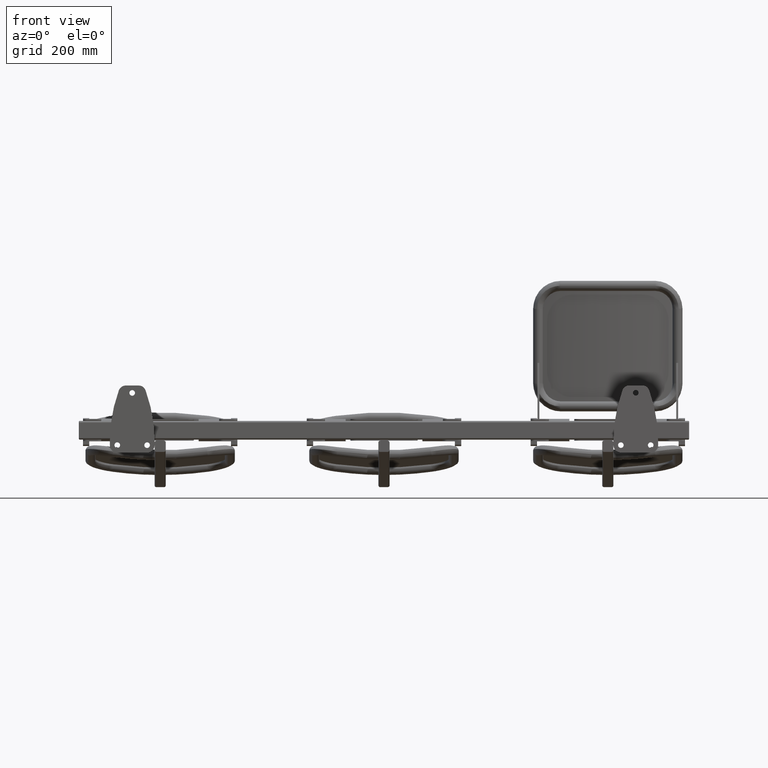
[diagram: clean part render]
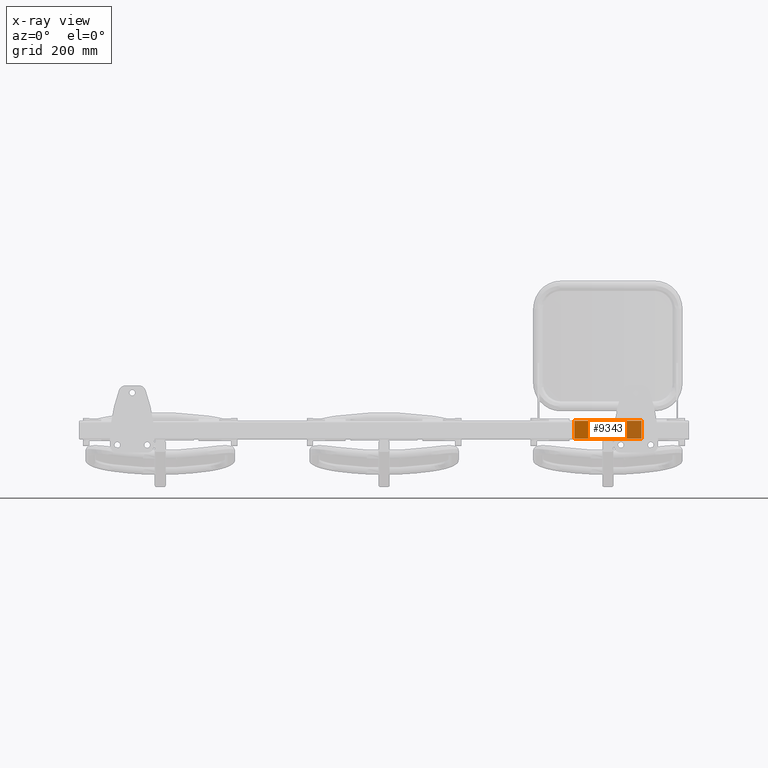
[diagram: x-ray — body ghosted, one internal face saturated and labeled with its STEP entity id]
A machine part, front view, then the same camera in x-ray: the body is ghosted and one INTERNAL B-rep face — a face not visible from any outside direction — is saturated and labeled: STEP entity #9343.
In plain terms, the highlighted planar face has unit normal (0, -1, -0).
Its self-contained STEP definition (entity closure, byte-faithful):
#3045 = AXIS2_PLACEMENT_3D ( 'NONE', #3160, #3165, #3166 ) ;
#3160 = CARTESIAN_POINT ( 'NONE',  ( 90.00000000000000000, -4.492917384351786200, 382.8460752030026700 ) ) ;
#3163 = PLANE ( 'NONE',  #3045 ) ;
#3165 = DIRECTION ( 'NONE',  ( 0.0000000000000000000, -0.1218693434051495300, 0.9925461516413217600 ) ) ;
#3166 = DIRECTION ( 'NONE',  ( 0.0000000000000000000, -0.9925461516413217600, -0.1218693434051495300 ) ) ;
#4816 = CARTESIAN_POINT ( 'NONE',  ( 90.00000000000000000, 43.14929789443161900, 388.6958036864497800 ) ) ;
#4841 = CARTESIAN_POINT ( 'NONE',  ( -90.00000000000000000, 43.14929789443161900, 388.6958036864497800 ) ) ;
#5156 = CARTESIAN_POINT ( 'NONE',  ( -90.00000000000000000, -4.492917384351789800, 382.8460752030026700 ) ) ;
#5179 = LINE ( 'NONE', #5610, #5184 ) ;
#5184 = VECTOR ( 'NONE', #5609, 1000.000000000000000 ) ;
#5183 = CARTESIAN_POINT ( 'NONE',  ( 90.00000000000000000, -4.492917384351789800, 382.8460752030026700 ) ) ;
#5609 = DIRECTION ( 'NONE',  ( -1.000000000000000000, -0.0000000000000000000, -0.0000000000000000000 ) ) ;
#5610 = CARTESIAN_POINT ( 'NONE',  ( 90.00000000000000000, 43.14929789443161900, 388.6958036864497800 ) ) ;
#9343 = ADVANCED_FACE ( 'NONE', ( #14413 ), #3163, .T. ) ;
#11215 = DIRECTION ( 'NONE',  ( 0.0000000000000000000, 0.9925461516413217600, 0.1218693434051495300 ) ) ;
#11225 = CARTESIAN_POINT ( 'NONE',  ( 90.00000000000000000, -4.492917384351786200, 382.8460752030026700 ) ) ;
#11226 = CARTESIAN_POINT ( 'NONE',  ( -90.00000000000000000, -4.492917384351786200, 382.8460752030026700 ) ) ;
#11230 = CARTESIAN_POINT ( 'NONE',  ( 90.00000000000000000, -4.492917384351789800, 382.8460752030026700 ) ) ;
#11232 = DIRECTION ( 'NONE',  ( -1.000000000000000000, -0.0000000000000000000, -0.0000000000000000000 ) ) ;
#11233 = DIRECTION ( 'NONE',  ( 0.0000000000000000000, 0.9925461516413217600, 0.1218693434051495300 ) ) ;
#12087 = EDGE_CURVE ( 'NONE', #14754, #13857, #13266, .T. ) ;
#12088 = EDGE_CURVE ( 'NONE', #14769, #14754, #13268, .T. ) ;
#12089 = EDGE_CURVE ( 'NONE', #14769, #13832, #13267, .T. ) ;
#12383 = EDGE_CURVE ( 'NONE', #13832, #13857, #5179, .T. ) ;
#13266 = LINE ( 'NONE', #11226, #13269 ) ;
#13267 = LINE ( 'NONE', #11225, #13273 ) ;
#13268 = LINE ( 'NONE', #11230, #13271 ) ;
#13269 = VECTOR ( 'NONE', #11215, 1000.000000000000000 ) ;
#13271 = VECTOR ( 'NONE', #11232, 1000.000000000000000 ) ;
#13273 = VECTOR ( 'NONE', #11233, 1000.000000000000000 ) ;
#13832 = VERTEX_POINT ( 'NONE', #4816 ) ;
#13857 = VERTEX_POINT ( 'NONE', #4841 ) ;
#13880 = EDGE_LOOP ( 'NONE', ( #14064, #14101, #14097, #14958 ) ) ;
#14064 = ORIENTED_EDGE ( 'NONE', *, *, #12087, .F. ) ;
#14097 = ORIENTED_EDGE ( 'NONE', *, *, #12089, .T. ) ;
#14101 = ORIENTED_EDGE ( 'NONE', *, *, #12088, .F. ) ;
#14413 = FACE_OUTER_BOUND ( 'NONE', #13880, .T. ) ;
#14754 = VERTEX_POINT ( 'NONE', #5156 ) ;
#14769 = VERTEX_POINT ( 'NONE', #5183 ) ;
#14958 = ORIENTED_EDGE ( 'NONE', *, *, #12383, .T. ) ;